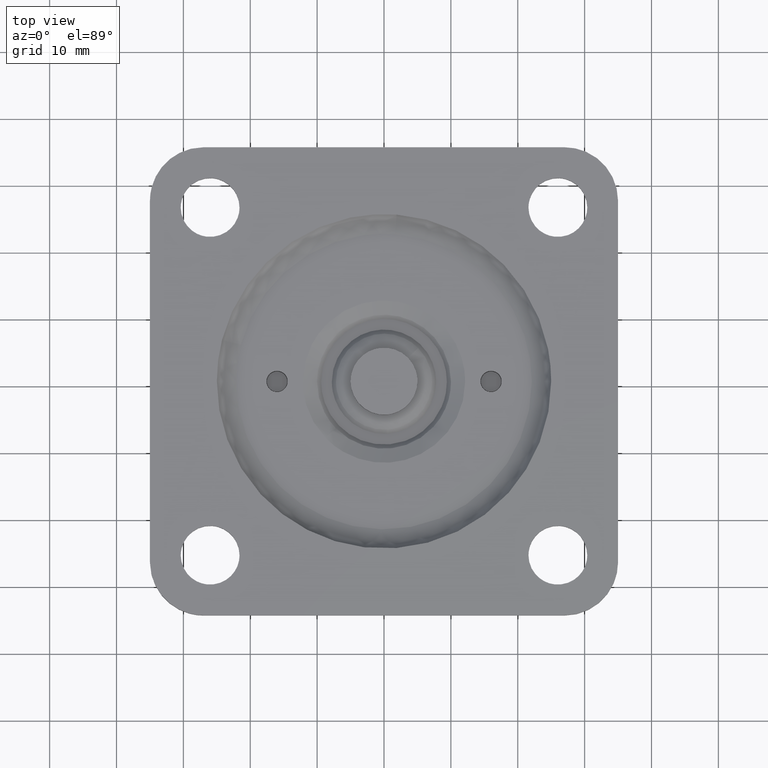
[diagram: clean part render]
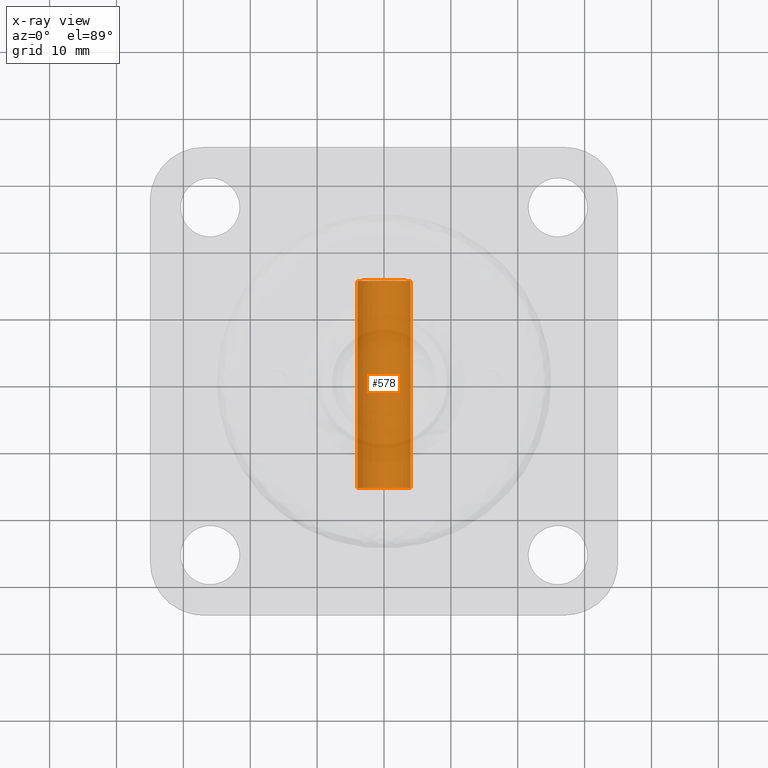
[diagram: x-ray — body ghosted, one internal face saturated and labeled with its STEP entity id]
A machine part, top view, then the same camera in x-ray: the body is ghosted and one INTERNAL B-rep face — a face not visible from any outside direction — is saturated and labeled: STEP entity #578.
In plain terms, the highlighted face is a freeform B-spline surface patch.
Its self-contained STEP definition (entity closure, byte-faithful):
#476=CARTESIAN_POINT('',(3.972036477171316,16.274997634499236,-0.472140745080864));
#477=CARTESIAN_POINT('',(3.985548827971865,16.274997634499233,-0.358462767606511));
#478=CARTESIAN_POINT('',(3.992537556999973,16.274997634499229,-0.244198058035321));
#479=CARTESIAN_POINT('',(4.236731615035307,16.274997634499236,3.748339498964653));
#480=CARTESIAN_POINT('',(0.244194058035333,16.274997634499229,3.992533556999985));
#481=CARTESIAN_POINT('',(-3.748343498964642,16.274997634499236,4.236727615035318));
#482=CARTESIAN_POINT('',(-3.992537556999973,16.274997634499229,0.244190058035344));
#483=CARTESIAN_POINT('',(3.972036477171316,-16.294373471166953,-0.472140745080864));
#484=CARTESIAN_POINT('',(3.985548827971865,-16.294373471166956,-0.358462767606511));
#485=CARTESIAN_POINT('',(3.992537556999973,-16.294373471166960,-0.244198058035321));
#486=CARTESIAN_POINT('',(4.236731615035307,-16.294373471166960,3.748339498964653));
#487=CARTESIAN_POINT('',(0.244194058035333,-16.294373471166960,3.992533556999985));
#488=CARTESIAN_POINT('',(-3.748343498964642,-16.294373471166960,4.236727615035318));
#489=CARTESIAN_POINT('',(-3.992537556999973,-16.294373471166960,0.244190058035344));
#497=(BOUNDED_SURFACE()B_SPLINE_SURFACE(2,1,((#476,#483),(#477,#484),(#478,#485),(#479,#486),(#480,#487),(#481,#488),(#482,#489)),.UNSPECIFIED.,.F.,.F.,.U.)B_SPLINE_SURFACE_WITH_KNOTS((3,2,2,3),(2,2),(0.0,0.265096571245979,6.892510852395453,13.519925133544930),(0.0,32.569371105666193),.UNSPECIFIED.)GEOMETRIC_REPRESENTATION_ITEM()RATIONAL_B_SPLINE_SURFACE(((0.977505800795127,0.977505800795127),(0.988284271247462,0.988284271247462),(1.0,1.0),(0.707106781186548,0.707106781186548),(1.0,1.0),(0.707106781186548,0.707106781186548),(1.0,1.0)))REPRESENTATION_ITEM('')SURFACE());
#498=CARTESIAN_POINT('',(3.972036477161061,-15.499998566150699,-0.472140745167139));
#499=VERTEX_POINT('',#498);
#500=CARTESIAN_POINT('',(0.0,-15.499998566150699,3.999994360254062));
#501=VERTEX_POINT('',#500);
#502=CARTESIAN_POINT('',(3.972036477161061,-15.499998566150699,-0.472140745167139));
#503=CARTESIAN_POINT('',(3.999998360254050,-15.499998566150705,-0.236900381582306));
#504=CARTESIAN_POINT('',(3.999998360254050,-15.499998566150699,-0.000003999999988));
#505=CARTESIAN_POINT('',(3.999998360254049,-15.499998566150696,3.999994360254061));
#506=CARTESIAN_POINT('',(0.0,-15.499998566150699,3.999994360254062));
#514=(BOUNDED_CURVE()B_SPLINE_CURVE(2,(#502,#503,#504,#505,#506),.UNSPECIFIED.,.F.,.U.)B_SPLINE_CURVE_WITH_KNOTS((3,2,3),(0.229562473508303,0.250000000000000,0.500000000000000),.UNSPECIFIED.)CURVE()GEOMETRIC_REPRESENTATION_ITEM()RATIONAL_B_SPLINE_CURVE((0.956026754173496,0.976055948325046,1.0,0.707106781186548,1.0))REPRESENTATION_ITEM(''));
#515=EDGE_CURVE('',#499,#501,#514,.T.);
#516=ORIENTED_EDGE('',*,*,#515,.T.);
#517=CARTESIAN_POINT('',(-3.992537556994988,-15.499998566150699,0.244190058116856));
#518=VERTEX_POINT('',#517);
#519=CARTESIAN_POINT('',(0.0,-15.499998566150699,3.999994360254062));
#520=CARTESIAN_POINT('',(-3.762822724949907,-15.499998566150703,3.999994360254062));
#521=CARTESIAN_POINT('',(-3.992537556994989,-15.499998566150699,0.244190058116856));
#529=(BOUNDED_CURVE()B_SPLINE_CURVE(2,(#519,#520,#521),.UNSPECIFIED.,.F.,.U.)B_SPLINE_CURVE_WITH_KNOTS((3,3),(0.500000000000000,0.739332962234924),.UNSPECIFIED.)CURVE()GEOMETRIC_REPRESENTATION_ITEM()RATIONAL_B_SPLINE_CURVE((1.0,0.719603993291419,0.976072041658104))REPRESENTATION_ITEM(''));
#530=EDGE_CURVE('',#501,#518,#529,.T.);
#531=ORIENTED_EDGE('',*,*,#530,.T.);
#532=CARTESIAN_POINT('',(-3.992537556994988,15.499997727166299,0.244190058116857));
#533=VERTEX_POINT('',#532);
#534=CARTESIAN_POINT('',(-3.992537556994988,15.499997727166299,0.244190058116857));
#535=CARTESIAN_POINT('',(-3.992537556994988,-15.499998566150699,0.244190058116856));
#536=QUASI_UNIFORM_CURVE('',1,(#534,#535),.UNSPECIFIED.,.F.,.U.);
#537=EDGE_CURVE('',#533,#518,#536,.T.);
#538=ORIENTED_EDGE('',*,*,#537,.F.);
#539=CARTESIAN_POINT('',(0.0,15.499997727166299,3.999994360254062));
#540=VERTEX_POINT('',#539);
#541=CARTESIAN_POINT('',(0.0,15.499997727166299,3.999994360254062));
#542=CARTESIAN_POINT('',(-3.762822724949907,15.499997727166294,3.999994360254062));
#543=CARTESIAN_POINT('',(-3.992537556994989,15.499997727166296,0.244190058116857));
#551=(BOUNDED_CURVE()B_SPLINE_CURVE(2,(#541,#542,#543),.UNSPECIFIED.,.F.,.U.)B_SPLINE_CURVE_WITH_KNOTS((3,3),(0.500000000000000,0.739332962234924),.UNSPECIFIED.)CURVE()GEOMETRIC_REPRESENTATION_ITEM()RATIONAL_B_SPLINE_CURVE((1.0,0.719603993291419,0.976072041658104))REPRESENTATION_ITEM(''));
#552=EDGE_CURVE('',#540,#533,#551,.T.);
#553=ORIENTED_EDGE('',*,*,#552,.F.);
#554=CARTESIAN_POINT('',(3.972036477161061,15.499997727166299,-0.472140745167139));
#555=VERTEX_POINT('',#554);
#556=CARTESIAN_POINT('',(3.972036477161061,15.499997727166301,-0.472140745167139));
#557=CARTESIAN_POINT('',(3.999998360254050,15.499997727166299,-0.236900381582306));
#558=CARTESIAN_POINT('',(3.999998360254050,15.499997727166299,-0.000003999999988));
#559=CARTESIAN_POINT('',(3.999998360254049,15.499997727166294,3.999994360254061));
#560=CARTESIAN_POINT('',(0.0,15.499997727166299,3.999994360254062));
#568=(BOUNDED_CURVE()B_SPLINE_CURVE(2,(#556,#557,#558,#559,#560),.UNSPECIFIED.,.F.,.U.)B_SPLINE_CURVE_WITH_KNOTS((3,2,3),(0.229562473508303,0.250000000000000,0.500000000000000),.UNSPECIFIED.)CURVE()GEOMETRIC_REPRESENTATION_ITEM()RATIONAL_B_SPLINE_CURVE((0.956026754173496,0.976055948325046,1.0,0.707106781186548,1.0))REPRESENTATION_ITEM(''));
#569=EDGE_CURVE('',#555,#540,#568,.T.);
#570=ORIENTED_EDGE('',*,*,#569,.F.);
#571=CARTESIAN_POINT('',(3.972036477161061,15.499997727166299,-0.472140745167139));
#572=CARTESIAN_POINT('',(3.972036477161061,-15.499998566150699,-0.472140745167139));
#573=QUASI_UNIFORM_CURVE('',1,(#571,#572),.UNSPECIFIED.,.F.,.U.);
#574=EDGE_CURVE('',#555,#499,#573,.T.);
#575=ORIENTED_EDGE('',*,*,#574,.T.);
#576=EDGE_LOOP('',(#516,#531,#538,#553,#570,#575));
#577=FACE_OUTER_BOUND('',#576,.T.);
#578=ADVANCED_FACE('',(#577),#497,.F.);